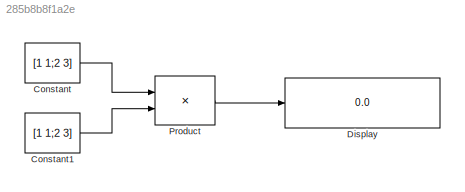
MODEL slx_285b8b8f1a2e
KIND model
CONFIG AbsTol = auto
CONFIG EnableMultiTasking = on
CONFIG FixedStep = auto
CONFIG MaxStep = auto
CONFIG MinStep = auto
CONFIG RelTol = 1e-3
CONFIG SampleTimeConstraint = Unconstrained
CONFIG Solver = ode45
CONFIG SolverName = ode45
CONFIG StartTime = 0.0
CONFIG StopTime = 10.0
BLOCK [Constant] Constant
  Value = [1 1;2 3]
BLOCK [Constant] Constant1
  Value = [1 1;2 3]
BLOCK [Display] Display
  Decimation = 1
  Ports = [1]
BLOCK [Product] Product
  Ports = [2, 1]
LINE Constant1:1 -> Product:2
LINE Constant:1 -> Product:1
LINE Product:1 -> Display:1
